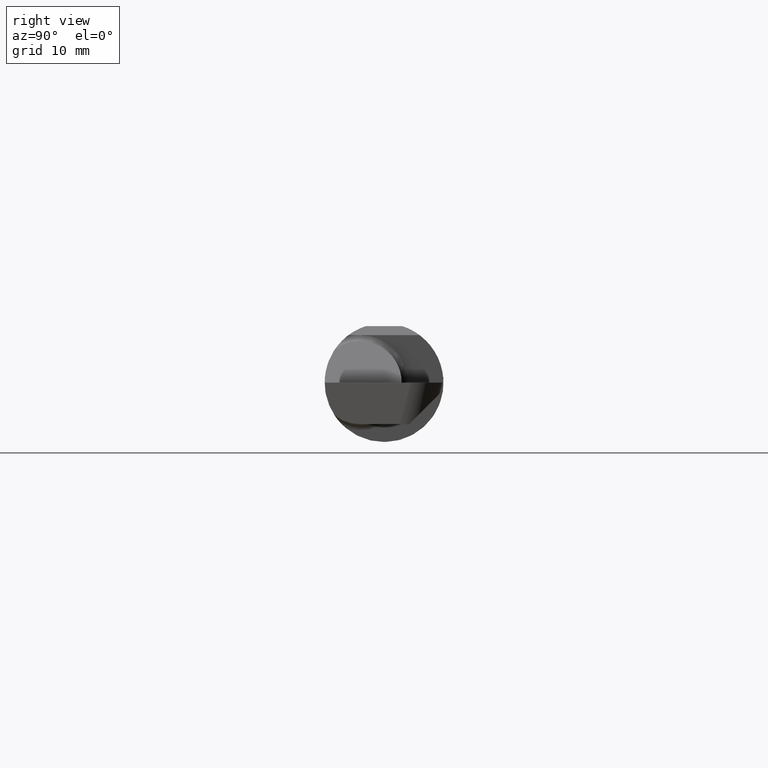
[diagram: clean part render]
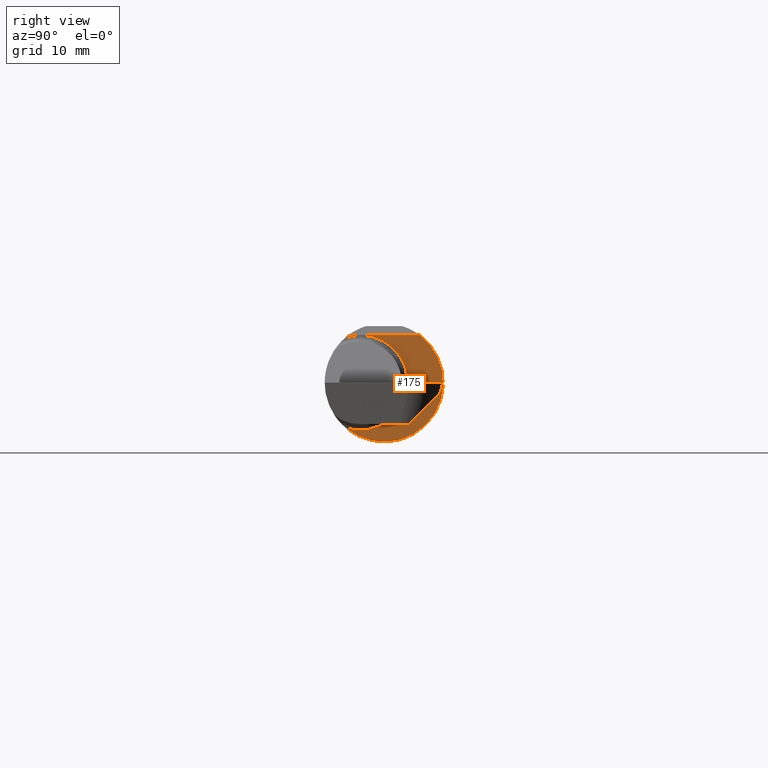
[diagram: same view with one face highlighted and labeled with its STEP entity id]
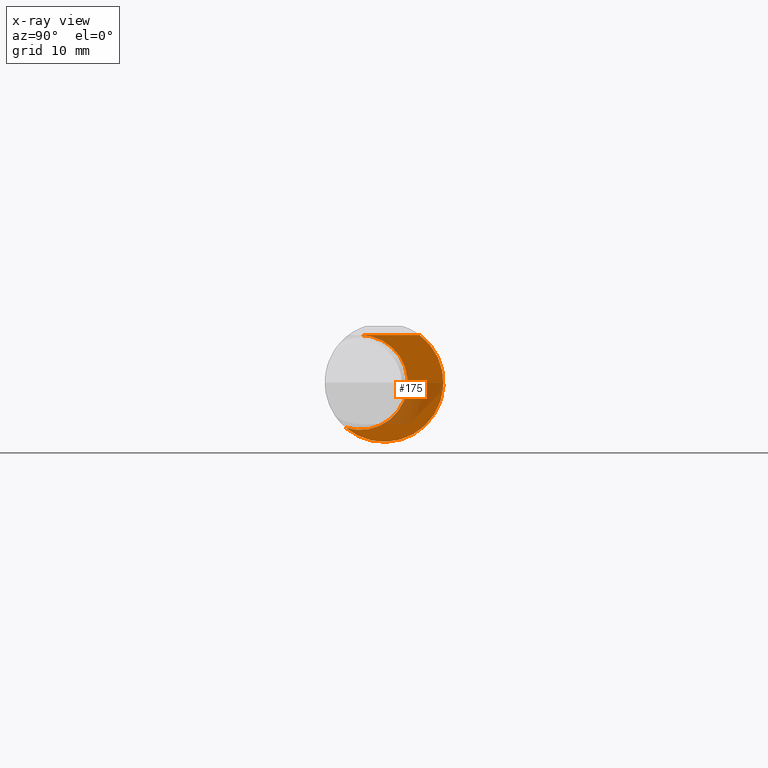
[diagram: x-ray of the same camera — body ghosted, the highlighted face saturated]
A machine part, right view. The second image highlights one B-rep face of the part: STEP entity #175.
The next image is the same camera in x-ray: the body ghosted, the highlighted face saturated — about 28% of this face is hidden behind the body in this view.
In plain terms, the highlighted planar face has unit normal (1, 0, 0).
Its self-contained STEP definition (entity closure, byte-faithful):
#10 = VECTOR ( 'NONE', #212, 39.37007874015748143 ) ;
#16 = CARTESIAN_POINT ( 'NONE',  ( 2.450000000000000178, 0.2498499999999999610, 0.000000000000000000 ) ) ;
#46 = CIRCLE ( 'NONE', #130, 0.2000000000000001221 ) ;
#98 = ORIENTED_EDGE ( 'NONE', *, *, #674, .T. ) ;
#108 = CARTESIAN_POINT ( 'NONE',  ( 2.450000000000000178, 0.1497498664440163885, 0.1999999999999982903 ) ) ;
#130 = AXIS2_PLACEMENT_3D ( 'NONE', #241, #197, #459 ) ;
#175 = ADVANCED_FACE ( 'NONE', ( #339 ), #724, .T. ) ;
#197 = DIRECTION ( 'NONE',  ( -1.000000000000000000, -4.000085335087457591E-16, -0.000000000000000000 ) ) ;
#212 = DIRECTION ( 'NONE',  ( 4.000085335087457591E-16, -1.000000000000000000, -4.000085335087417655E-16 ) ) ;
#241 = CARTESIAN_POINT ( 'NONE',  ( 2.450000000000000178, -0.1008500000000001201, 0.000000000000000000 ) ) ;
#267 = AXIS2_PLACEMENT_3D ( 'NONE', #657, #709, #324 ) ;
#324 = DIRECTION ( 'NONE',  ( 0.000000000000000000, 1.000000000000000000, 0.000000000000000000 ) ) ;
#339 = FACE_OUTER_BOUND ( 'NONE', #597, .T. ) ;
#364 = CARTESIAN_POINT ( 'NONE',  ( 2.450000000000000178, -0.1008500000000002034, 0.1999999999999981792 ) ) ;
#393 = VERTEX_POINT ( 'NONE', #364 ) ;
#459 = DIRECTION ( 'NONE',  ( 0.000000000000000000, -1.000000000000000000, 0.000000000000000000 ) ) ;
#470 = ORIENTED_EDGE ( 'NONE', *, *, #684, .T. ) ;
#472 = CARTESIAN_POINT ( 'NONE',  ( 2.450000000000000178, -0.1616050818046600723, -0.1905487340154983222 ) ) ;
#539 = CARTESIAN_POINT ( 'NONE',  ( 2.450000000000000178, -0.2500000000000002220, 0.1999999999999980960 ) ) ;
#544 = DIRECTION ( 'NONE',  ( 1.000000000000000000, 4.000085335087457591E-16, 0.000000000000000000 ) ) ;
#568 = CIRCLE ( 'NONE', #267, 0.2498499999999999888 ) ;
#589 = LINE ( 'NONE', #539, #10 ) ;
#597 = EDGE_LOOP ( 'NONE', ( #98, #470, #773 ) ) ;
#612 = VERTEX_POINT ( 'NONE', #108 ) ;
#652 = EDGE_CURVE ( 'NONE', #393, #665, #46, .T. ) ;
#657 = CARTESIAN_POINT ( 'NONE',  ( 2.450000000000000178, 0.000000000000000000, 0.000000000000000000 ) ) ;
#665 = VERTEX_POINT ( 'NONE', #472 ) ;
#674 = EDGE_CURVE ( 'NONE', #665, #612, #568, .T. ) ;
#684 = EDGE_CURVE ( 'NONE', #612, #393, #589, .T. ) ;
#709 = DIRECTION ( 'NONE',  ( 1.000000000000000000, 4.000085335087457591E-16, 0.000000000000000000 ) ) ;
#724 = PLANE ( 'NONE',  #738 ) ;
#738 = AXIS2_PLACEMENT_3D ( 'NONE', #16, #544, #772 ) ;
#772 = DIRECTION ( 'NONE',  ( -4.000085335087457591E-16, 1.000000000000000000, 0.000000000000000000 ) ) ;
#773 = ORIENTED_EDGE ( 'NONE', *, *, #652, .T. ) ;